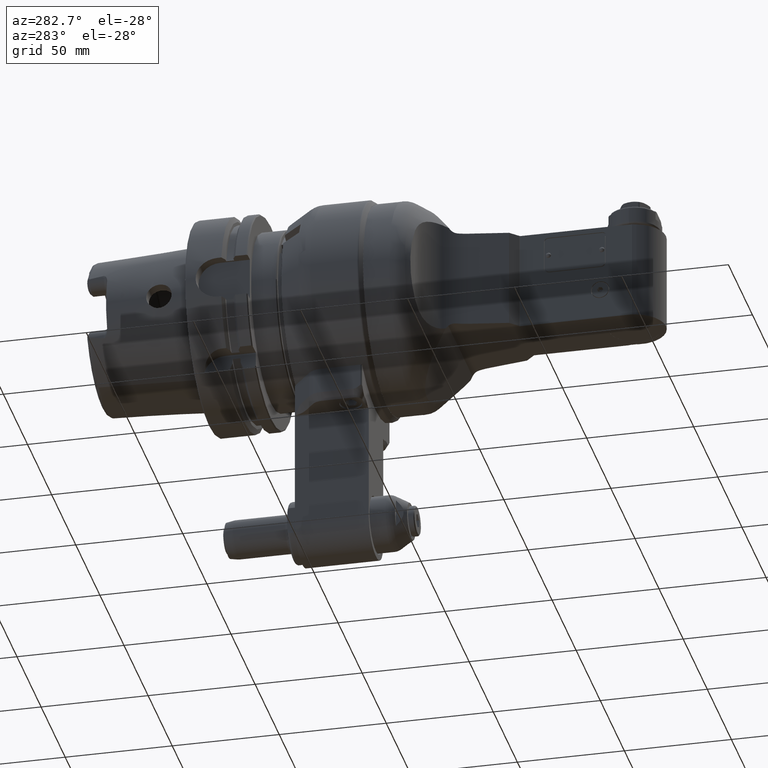
[diagram: clean part render]
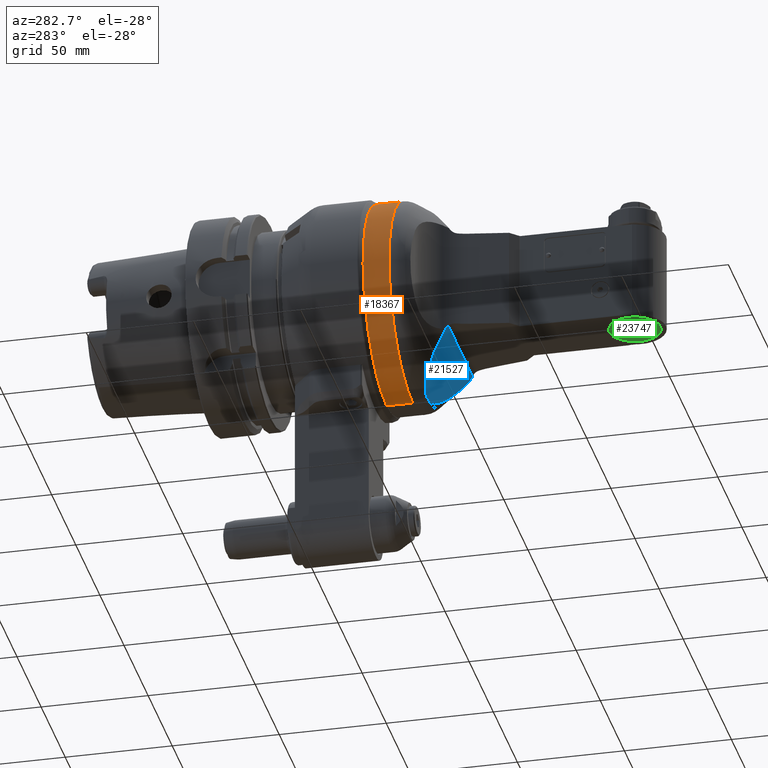
[diagram: same view with three faces highlighted in distinct colors, each labeled with its STEP entity id]
A machine part, auxiliary view with three faces highlighted in distinct colors.
Their STEP definitions:

[orange] entity #18367 — the highlighted cylindrical surface (partial cylindrical patch) has radius 48.9 mm, axis along (0, -1, 0).
#5755=CARTESIAN_POINT('',(0.E0,1.16E2,0.E0));
#5756=DIRECTION('',(0.E0,-1.E0,0.E0));
#5757=DIRECTION('',(-3.067484662577E-2,0.E0,9.995294161677E-1));
#5758=AXIS2_PLACEMENT_3D('',#5755,#5756,#5757);
#5760=DIRECTION('',(0.E0,-1.E0,0.E0));
#5761=VECTOR('',#5760,1.221641453345E1);
#5762=CARTESIAN_POINT('',(0.E0,1.16E2,4.89E1));
#5763=LINE('',#5762,#5761);
#5764=DIRECTION('',(0.E0,-1.E0,0.E0));
#5765=VECTOR('',#5764,1.221641453345E1);
#5766=CARTESIAN_POINT('',(0.E0,1.16E2,-4.89E1));
#5767=LINE('',#5766,#5765);
#5786=CARTESIAN_POINT('',(0.E0,1.16E2,0.E0));
#5787=DIRECTION('',(0.E0,-1.E0,0.E0));
#5788=DIRECTION('',(0.E0,0.E0,1.E0));
#5789=AXIS2_PLACEMENT_3D('',#5786,#5787,#5788);
#8512=CARTESIAN_POINT('',(0.E0,1.037835854665E2,0.E0));
#8513=DIRECTION('',(0.E0,-1.E0,0.E0));
#8514=DIRECTION('',(0.E0,0.E0,1.E0));
#8515=AXIS2_PLACEMENT_3D('',#8512,#8513,#8514);
#11582=CARTESIAN_POINT('',(0.E0,1.037835854665E2,4.89E1));
#11583=CARTESIAN_POINT('',(0.E0,1.037835854665E2,-4.89E1));
#11584=VERTEX_POINT('',#11582);
#11585=VERTEX_POINT('',#11583);
#11590=CARTESIAN_POINT('',(0.E0,1.16E2,4.89E1));
#11591=VERTEX_POINT('',#11590);
#11786=CARTESIAN_POINT('',(-1.5E0,1.16E2,4.887698845060E1));
#11788=VERTEX_POINT('',#11786);
#11820=CARTESIAN_POINT('',(0.E0,1.16E2,-4.89E1));
#11821=VERTEX_POINT('',#11820);
#18353=CARTESIAN_POINT('',(0.E0,1.344608207267E2,0.E0));
#18354=DIRECTION('',(0.E0,-1.E0,0.E0));
#18355=DIRECTION('',(0.E0,0.E0,1.E0));
#18356=AXIS2_PLACEMENT_3D('',#18353,#18354,#18355);
#18357=CYLINDRICAL_SURFACE('',#18356,4.89E1);
#18358=ORIENTED_EDGE('',*,*,#18327,.F.);
#18360=ORIENTED_EDGE('',*,*,#18359,.F.);
#18361=ORIENTED_EDGE('',*,*,#18342,.T.);
#18363=ORIENTED_EDGE('',*,*,#18362,.T.);
#18364=ORIENTED_EDGE('',*,*,#18338,.F.);
#18365=EDGE_LOOP('',(#18358,#18360,#18361,#18363,#18364));
#18366=FACE_OUTER_BOUND('',#18365,.F.);
#18367=ADVANCED_FACE('',(#18366),#18357,.T.);
#5759=CIRCLE('',#5758,4.89E1);
#5790=CIRCLE('',#5789,4.89E1);
#8516=CIRCLE('',#8515,4.89E1);
#18327=EDGE_CURVE('',#11788,#11821,#5759,.T.);
#18338=EDGE_CURVE('',#11821,#11585,#5767,.T.);
#18342=EDGE_CURVE('',#11591,#11584,#5763,.T.);
#18359=EDGE_CURVE('',#11591,#11788,#5790,.T.);
#18362=EDGE_CURVE('',#11584,#11585,#8516,.T.);

[blue] entity #21527 — the highlighted planar face has unit normal (0, 0.8192, 0.5736).
#8537=CARTESIAN_POINT('',(-1.363056940780E-14,9.715919548832E1,
-4.700587114730E1));
#8538=CARTESIAN_POINT('',(-3.693660238656E-1,9.715919548832E1,
-4.700587114730E1));
#8539=CARTESIAN_POINT('',(-1.102183493258E0,9.714789488229E1,
-4.698973220932E1));
#8540=CARTESIAN_POINT('',(-2.189967118996E0,9.709769702197E1,
-4.691804223516E1));
#8541=CARTESIAN_POINT('',(-3.247406009562E0,9.701567719984E1,
-4.680090578968E1));
#8542=CARTESIAN_POINT('',(-3.919840442773E0,9.694204295387E1,
-4.669574518807E1));
#8543=CARTESIAN_POINT('',(-4.249092444199E0,9.690066823033E1,
-4.663665595911E1));
#8560=CARTESIAN_POINT('',(4.249092444111E0,9.690066823034E1,-4.663665595912E1));
#8561=CARTESIAN_POINT('',(5.030448431946E0,9.680248086063E1,-4.649642986279E1));
#8562=CARTESIAN_POINT('',(6.517121420075E0,9.656070736877E1,-4.615114153230E1));
#8563=CARTESIAN_POINT('',(9.246733394353E0,9.593164004109E1,-4.525274028218E1));
#8564=CARTESIAN_POINT('',(1.227895160857E1,9.491854985333E1,-4.380589754987E1));
#8565=CARTESIAN_POINT('',(1.545051026041E1,9.342395965614E1,-4.167140153887E1));
#8566=CARTESIAN_POINT('',(1.822618219256E1,9.169300698534E1,-3.919934493229E1));
#8567=CARTESIAN_POINT('',(2.064616095909E1,8.974968923054E1,-3.642399955431E1));
#8568=CARTESIAN_POINT('',(2.272930497598E1,8.760526572841E1,-3.336144540413E1));
#8569=CARTESIAN_POINT('',(2.447852888964E1,8.526147665611E1,-3.001416771230E1));
#8570=CARTESIAN_POINT('',(2.541380374861E1,8.356110802432E1,-2.758578964008E1));
#8571=CARTESIAN_POINT('',(2.581853261668E1,8.267336442076E1,-2.631796038216E1));
#8573=CARTESIAN_POINT('',(-1.363056940780E-14,9.715919548832E1,
-4.700587114730E1));
#8574=CARTESIAN_POINT('',(3.693669390080E-1,9.715919548832E1,
-4.700587114730E1));
#8575=CARTESIAN_POINT('',(1.102185852689E0,9.714789483065E1,-4.698973213558E1));
#8576=CARTESIAN_POINT('',(2.189971040251E0,9.709769678701E1,-4.691804189961E1));
#8577=CARTESIAN_POINT('',(3.247409228167E0,9.701567688080E1,-4.680090533403E1));
#8578=CARTESIAN_POINT('',(3.919841748343E0,9.694204278981E1,-4.669574495377E1));
#8579=CARTESIAN_POINT('',(4.249092444120E0,9.690066823034E1,-4.663665595912E1));
#8581=CARTESIAN_POINT('',(-2.581853261668E1,8.267336442076E1,
-2.631796038216E1));
#8582=CARTESIAN_POINT('',(-2.541380374861E1,8.356110802431E1,
-2.758578964007E1));
#8583=CARTESIAN_POINT('',(-2.447852888965E1,8.526147665609E1,
-3.001416771227E1));
#8584=CARTESIAN_POINT('',(-2.272930497602E1,8.760526572837E1,
-3.336144540408E1));
#8585=CARTESIAN_POINT('',(-2.064616095914E1,8.974968923049E1,
-3.642399955424E1));
#8586=CARTESIAN_POINT('',(-1.822618219264E1,9.169300698528E1,
-3.919934493220E1));
#8587=CARTESIAN_POINT('',(-1.545051026052E1,9.342395965608E1,
-4.167140153878E1));
#8588=CARTESIAN_POINT('',(-1.227895160872E1,9.491854985327E1,
-4.380589754979E1));
#8589=CARTESIAN_POINT('',(-9.246733394536E0,9.593164004104E1,
-4.525274028210E1));
#8590=CARTESIAN_POINT('',(-6.517121420290E0,9.656070736873E1,
-4.615114153224E1));
#8591=CARTESIAN_POINT('',(-5.030448432179E0,9.680248086060E1,
-4.649642986274E1));
#8592=CARTESIAN_POINT('',(-4.249092444353E0,9.690066823031E1,
-4.663665595908E1));
#8636=CARTESIAN_POINT('',(2.581853261668E1,8.267336442075E1,-2.631796038215E1));
#8663=CARTESIAN_POINT('',(2.512099811461E1,8.154444352464E1,-2.470569425460E1));
#8664=CARTESIAN_POINT('',(2.534182739191E1,8.192312647297E1,-2.524650955245E1));
#8665=CARTESIAN_POINT('',(2.557411718317E1,8.229947853061E1,-2.578399599339E1));
#8666=CARTESIAN_POINT('',(2.581853261668E1,8.267336442076E1,-2.631796038216E1));
#8945=CARTESIAN_POINT('',(-2.581853261668E1,8.267336442076E1,
-2.631796038216E1));
#8946=CARTESIAN_POINT('',(-2.557411718317E1,8.229947853061E1,
-2.578399599339E1));
#8947=CARTESIAN_POINT('',(-2.534182739191E1,8.192312647298E1,
-2.524650955245E1));
#8948=CARTESIAN_POINT('',(-2.512099811461E1,8.154444352464E1,
-2.470569425460E1));
#9049=DIRECTION('',(1.E0,3.988158642627E-14,-5.656962613655E-14));
#9050=VECTOR('',#9049,5.024199622921E1);
#9051=CARTESIAN_POINT('',(-2.512099811461E1,8.154444352464E1,
-2.470569425460E1));
#9052=LINE('',#9051,#9050);
#11170=VERTEX_POINT('',#8636);
#11171=VERTEX_POINT('',#8663);
#11175=CARTESIAN_POINT('',(-4.249092444183E0,9.690066823034E1,
-4.663665595911E1));
#11177=VERTEX_POINT('',#11175);
#11179=VERTEX_POINT('',#8537);
#11225=VERTEX_POINT('',#8581);
#11226=VERTEX_POINT('',#8948);
#11227=VERTEX_POINT('',#8560);
#21508=CARTESIAN_POINT('',(5.88000024E1,9.690066823034E1,-4.663665595912E1));
#21509=DIRECTION('',(0.E0,8.191520442890E-1,5.735764363510E-1));
#21510=DIRECTION('',(0.E0,-5.735764363510E-1,8.191520442890E-1));
#21511=AXIS2_PLACEMENT_3D('',#21508,#21509,#21510);
#21512=PLANE('',#21511);
#21514=ORIENTED_EDGE('',*,*,#21513,.F.);
#21515=ORIENTED_EDGE('',*,*,#21500,.F.);
#21516=ORIENTED_EDGE('',*,*,#21486,.T.);
#21518=ORIENTED_EDGE('',*,*,#21517,.F.);
#21520=ORIENTED_EDGE('',*,*,#21519,.T.);
#21522=ORIENTED_EDGE('',*,*,#21521,.T.);
#21524=ORIENTED_EDGE('',*,*,#21523,.T.);
#21525=EDGE_LOOP('',(#21514,#21515,#21516,#21518,#21520,#21522,#21524));
#21526=FACE_OUTER_BOUND('',#21525,.F.);
#21527=ADVANCED_FACE('',(#21526),#21512,.F.);
#8544=B_SPLINE_CURVE_WITH_KNOTS('',3,(#8537,#8538,#8539,#8540,#8541,#8542,
#8543),.UNSPECIFIED.,.F.,.F.,(4,1,1,1,4),(0.E0,2.5E-1,5.E-1,7.5E-1,1.E0),
.UNSPECIFIED.);
#8572=B_SPLINE_CURVE_WITH_KNOTS('',3,(#8560,#8561,#8562,#8563,#8564,#8565,#8566,
#8567,#8568,#8569,#8570,#8571),.UNSPECIFIED.,.F.,.F.,(4,1,1,1,1,1,1,1,1,4),
(0.E0,6.25E-2,1.25E-1,2.5E-1,3.75E-1,5.E-1,6.25E-1,7.5E-1,8.75E-1,1.E0),
.UNSPECIFIED.);
#8580=B_SPLINE_CURVE_WITH_KNOTS('',3,(#8573,#8574,#8575,#8576,#8577,#8578,
#8579),.UNSPECIFIED.,.F.,.F.,(4,1,1,1,4),(0.E0,2.5E-1,5.E-1,7.5E-1,1.E0),
.UNSPECIFIED.);
#8593=B_SPLINE_CURVE_WITH_KNOTS('',3,(#8581,#8582,#8583,#8584,#8585,#8586,#8587,
#8588,#8589,#8590,#8591,#8592),.UNSPECIFIED.,.F.,.F.,(4,1,1,1,1,1,1,1,1,4),
(0.E0,1.25E-1,2.5E-1,3.75E-1,5.E-1,6.25E-1,7.5E-1,8.75E-1,9.375E-1,1.E0),
.UNSPECIFIED.);
#8667=B_SPLINE_CURVE_WITH_KNOTS('',3,(#8663,#8664,#8665,#8666),.UNSPECIFIED.,
.F.,.F.,(4,4),(0.E0,1.E0),.UNSPECIFIED.);
#8949=B_SPLINE_CURVE_WITH_KNOTS('',3,(#8945,#8946,#8947,#8948),.UNSPECIFIED.,
.F.,.F.,(4,4),(0.E0,1.E0),.UNSPECIFIED.);
#21486=EDGE_CURVE('',#11179,#11177,#8544,.T.);
#21500=EDGE_CURVE('',#11179,#11227,#8580,.T.);
#21513=EDGE_CURVE('',#11227,#11170,#8572,.T.);
#21517=EDGE_CURVE('',#11225,#11177,#8593,.T.);
#21519=EDGE_CURVE('',#11225,#11226,#8949,.T.);
#21521=EDGE_CURVE('',#11226,#11171,#9052,.T.);
#21523=EDGE_CURVE('',#11171,#11170,#8667,.T.);

[green] entity #23747 — the highlighted planar face has unit normal (0, 0, -1).
#10481=CARTESIAN_POINT('',(0.E0,0.E0,-2.295E1));
#10482=DIRECTION('',(0.E0,0.E0,-1.E0));
#10483=DIRECTION('',(0.E0,1.E0,0.E0));
#10484=AXIS2_PLACEMENT_3D('',#10481,#10482,#10483);
#10486=CARTESIAN_POINT('',(0.E0,0.E0,-2.295E1));
#10487=DIRECTION('',(0.E0,0.E0,-1.E0));
#10488=DIRECTION('',(0.E0,-1.E0,0.E0));
#10489=AXIS2_PLACEMENT_3D('',#10486,#10487,#10488);
#11608=CARTESIAN_POINT('',(0.E0,1.2E1,-2.295E1));
#11609=CARTESIAN_POINT('',(1.182989956315E-14,-1.2E1,-2.295E1));
#11610=VERTEX_POINT('',#11608);
#11611=VERTEX_POINT('',#11609);
#23738=CARTESIAN_POINT('',(0.E0,1.33E2,-2.295E1));
#23739=DIRECTION('',(0.E0,0.E0,-1.E0));
#23740=DIRECTION('',(0.E0,1.E0,0.E0));
#23741=AXIS2_PLACEMENT_3D('',#23738,#23739,#23740);
#23742=PLANE('',#23741);
#23743=ORIENTED_EDGE('',*,*,#23718,.F.);
#23744=ORIENTED_EDGE('',*,*,#23732,.F.);
#23745=EDGE_LOOP('',(#23743,#23744));
#23746=FACE_OUTER_BOUND('',#23745,.F.);
#23747=ADVANCED_FACE('',(#23746),#23742,.T.);
#10485=CIRCLE('',#10484,1.2E1);
#10490=CIRCLE('',#10489,1.2E1);
#23718=EDGE_CURVE('',#11610,#11611,#10485,.T.);
#23732=EDGE_CURVE('',#11611,#11610,#10490,.T.);